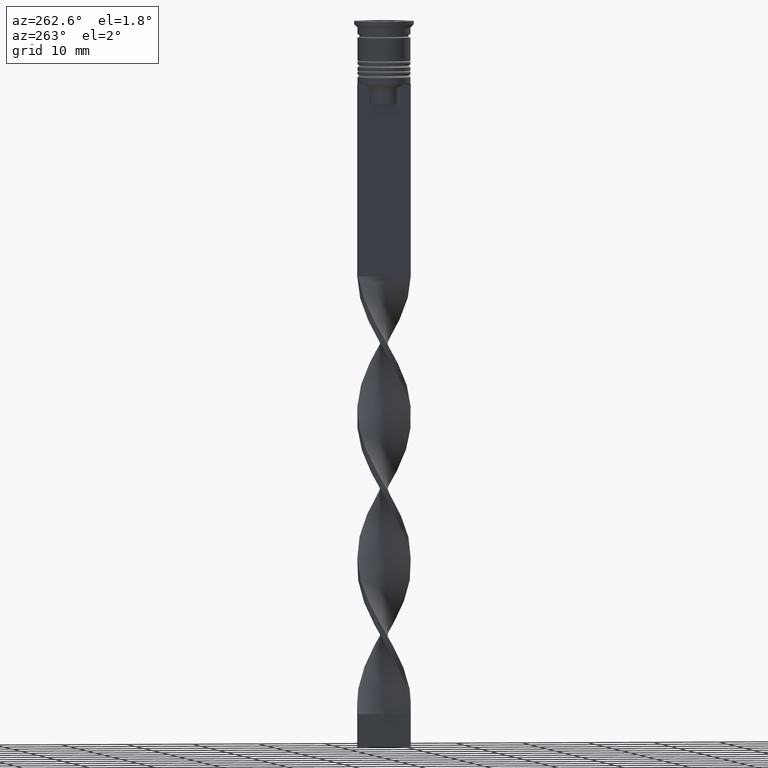
[diagram: clean part render]
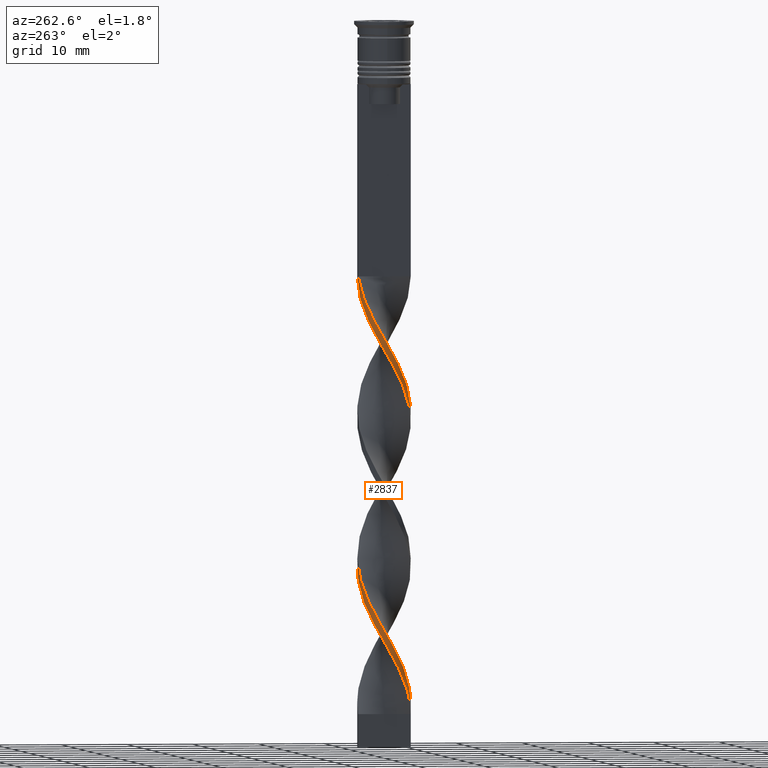
[diagram: same view with one face highlighted and labeled with its STEP entity id]
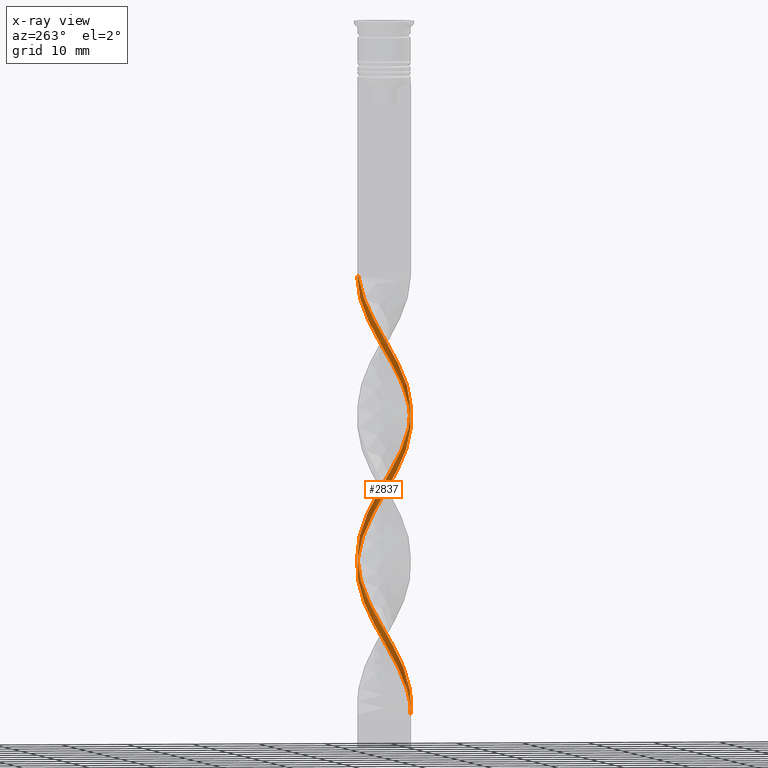
[diagram: x-ray of the same camera — body ghosted, the highlighted face saturated]
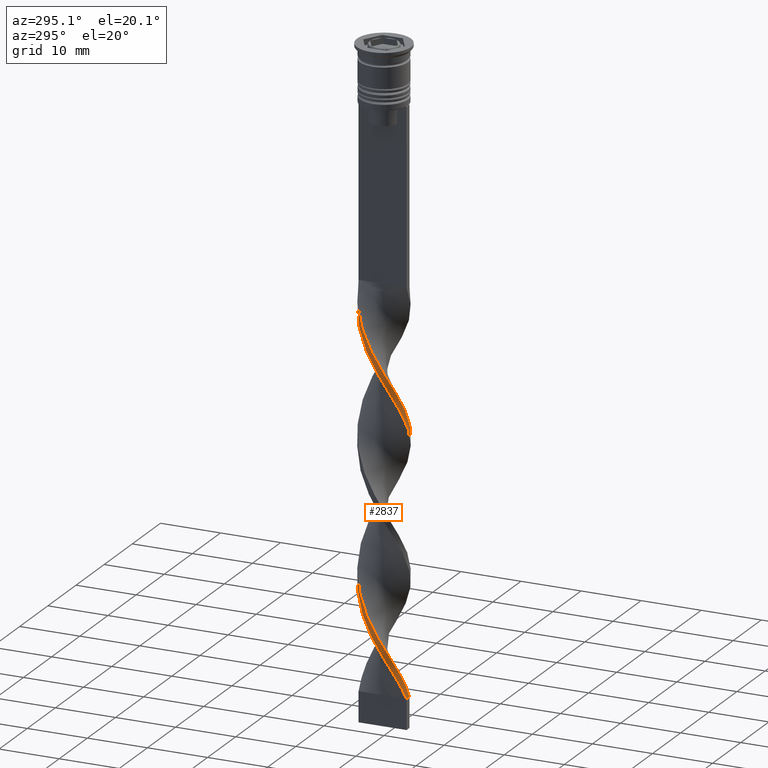
[diagram: same view with one face highlighted and labeled with its STEP entity id]
A machine part, auxiliary view. The second image highlights one B-rep face of the part: STEP entity #2837.
The next image is the same camera in x-ray: the body ghosted, the highlighted face saturated — about 0% of this face is hidden behind the body in this view.
A second angle (auxiliary view) of the same face is appended — the face is thin or edge-on in the first view.
In plain terms, the highlighted face is a freeform B-spline surface patch.
Its self-contained STEP definition (entity closure, byte-faithful):
#10 = CARTESIAN_POINT ( 'NONE',  ( -3.575967836940204148, -1.860767053977794516, -53.73076923076923350 ) ) ;
#20 = CARTESIAN_POINT ( 'NONE',  ( 0.4999999999999994449, -4.000000000000000000, -104.5000000000000142 ) ) ;
#26 = CARTESIAN_POINT ( 'NONE',  ( -3.007903090209047559, 2.683750919871451757, -89.26923076923077360 ) ) ;
#42 = CARTESIAN_POINT ( 'NONE',  ( -4.031103836519878136, 0.01420771602773549663, -94.34615384615385381 ) ) ;
#56 =( BOUNDED_SURFACE ( )  B_SPLINE_SURFACE ( 1, 2, ( 
 ( #1052, #1548, #1273, #2129, #3478, #3212, #109, #976, #3234, #3251, #702, #2983, #730, #1844, #2956, #1863, #2970, #2919, #763, #1334, #446, #2172, #1256, #410, #3271, #2645, #2367, #280, #2533, #3589, #3631, #2189, #1920, #3363, #3649, #1939, #2792, #2211, #827, #2479, #545, #809, #1896, #1097, #3077, #2771, #3312, #267, #3005, #787, #1391, #246, #565, #2806, #2229, #486, #2736, #1425, #3047, #3026, #526, #1957, #1619, #1658, #2504, #3346, #506, #2246, #3614, #1639, #213, #2264, #1352, #2461, #846, #1117, #3568, #1682, #1370 ),
 ( #1150, #3063, #3331, #1133, #1412, #1071, #2520, #2753, #3290, #1978, #1701, #229, #860, #876, #3130, #2054, #2570, #630, #10, #3393, #328, #613, #2839, #1218, #1177, #935, #2005, #3149, #3163, #1440, #2275, #1167, #1770, #65, #1470, #3436, #893, #1788, #2023, #308, #2603, #2326, #2305, #3376, #1993, #2343, #3109, #1453, #1715, #292, #1732, #2875, #369, #3096, #86, #577, #346, #648, #1508, #591, #26, #1197, #2895, #2819, #2287, #1752, #42, #2623, #1236, #3415, #2859, #2553, #1491, #2583, #916, #2040, #667, #3527, #721 ) ),
 .UNSPECIFIED., .F., .F., .F. ) 
 B_SPLINE_SURFACE_WITH_KNOTS ( ( 2, 2 ),
 ( 3, 2, 2, 2, 2, 2, 2, 2, 2, 2, 2, 2, 2, 2, 2, 2, 2, 2, 2, 2, 2, 2, 2, 2, 2, 2, 2, 2, 2, 2, 2, 2, 2, 2, 2, 2, 2, 2, 2, 3 ),
 ( 0.000000000000000000, 1.000000000000000000 ),
 ( 0.000000000000000000, 0.01923076923076923184, 0.03846153846153846367, 0.05769230769230769551, 0.07692307692307692735, 0.09615384615384615918, 0.1153846153846153910, 0.1346153846153846090, 0.1538461538461538547, 0.1730769230769230727, 0.1923076923076923184, 0.2115384615384615363, 0.2307692307692307820, 0.2500000000000000000, 0.2692307692307692180, 0.2884615384615384359, 0.3076923076923077094, 0.3269230769230769273, 0.3461538461538461453, 0.3653846153846153633, 0.3846153846153846367, 0.4038461538461538547, 0.4230769230769230727, 0.4423076923076922906, 0.4615384615384615641, 0.4807692307692307820, 0.5000000000000000000, 0.5192307692307692735, 0.5384615384615384359, 0.5576923076923077094, 0.5769230769230768718, 0.5961538461538461453, 0.6153846153846154188, 0.6346153846153845812, 0.6538461538461538547, 0.6730769230769231282, 0.6923076923076922906, 0.7115384615384615641, 0.7307692307692307265, 0.7500000000000000000 ),
 .UNSPECIFIED. ) 
 GEOMETRIC_REPRESENTATION_ITEM ( )  RATIONAL_B_SPLINE_SURFACE ( (
 ( 1.000000000000000000, 0.9927088740980539727, 1.000000000000000000, 0.9927088740980539727, 1.000000000000000000, 0.9927088740980539727, 1.000000000000000000, 0.9927088740980539727, 1.000000000000000000, 0.9927088740980539727, 1.000000000000000000, 0.9927088740980539727, 1.000000000000000000, 0.9927088740980539727, 1.000000000000000000, 0.9927088740980539727, 1.000000000000000000, 0.9927088740980539727, 1.000000000000000000, 0.9927088740980539727, 1.000000000000000000, 0.9927088740980539727, 1.000000000000000000, 0.9927088740980539727, 1.000000000000000000, 0.9927088740980539727, 1.000000000000000000, 0.9927088740980539727, 1.000000000000000000, 0.9927088740980539727, 1.000000000000000000, 0.9927088740980539727, 1.000000000000000000, 0.9927088740980539727, 1.000000000000000000, 0.9927088740980539727, 1.000000000000000000, 0.9927088740980539727, 1.000000000000000000, 0.9927088740980539727, 1.000000000000000000, 0.9927088740980539727, 1.000000000000000000, 0.9927088740980539727, 1.000000000000000000, 0.9927088740980539727, 1.000000000000000000, 0.9927088740980539727, 1.000000000000000000, 0.9927088740980539727, 1.000000000000000000, 0.9927088740980539727, 1.000000000000000000, 0.9927088740980539727, 1.000000000000000000, 0.9927088740980539727, 1.000000000000000000, 0.9927088740980539727, 1.000000000000000000, 0.9927088740980539727, 1.000000000000000000, 0.9927088740980539727, 1.000000000000000000, 0.9927088740980539727, 1.000000000000000000, 0.9927088740980539727, 1.000000000000000000, 0.9927088740980539727, 1.000000000000000000, 0.9927088740980539727, 1.000000000000000000, 0.9927088740980539727, 1.000000000000000000, 0.9927088740980539727, 1.000000000000000000, 0.9927088740980539727, 1.000000000000000000, 0.9927088740980539727, 1.000000000000000000),
 ( 1.000000000000000000, 0.9927088740980539727, 1.000000000000000000, 0.9927088740980539727, 1.000000000000000000, 0.9927088740980539727, 1.000000000000000000, 0.9927088740980539727, 1.000000000000000000, 0.9927088740980539727, 1.000000000000000000, 0.9927088740980539727, 1.000000000000000000, 0.9927088740980539727, 1.000000000000000000, 0.9927088740980539727, 1.000000000000000000, 0.9927088740980539727, 1.000000000000000000, 0.9927088740980539727, 1.000000000000000000, 0.9927088740980539727, 1.000000000000000000, 0.9927088740980539727, 1.000000000000000000, 0.9927088740980539727, 1.000000000000000000, 0.9927088740980539727, 1.000000000000000000, 0.9927088740980539727, 1.000000000000000000, 0.9927088740980539727, 1.000000000000000000, 0.9927088740980539727, 1.000000000000000000, 0.9927088740980539727, 1.000000000000000000, 0.9927088740980539727, 1.000000000000000000, 0.9927088740980539727, 1.000000000000000000, 0.9927088740980539727, 1.000000000000000000, 0.9927088740980539727, 1.000000000000000000, 0.9927088740980539727, 1.000000000000000000, 0.9927088740980539727, 1.000000000000000000, 0.9927088740980539727, 1.000000000000000000, 0.9927088740980539727, 1.000000000000000000, 0.9927088740980539727, 1.000000000000000000, 0.9927088740980539727, 1.000000000000000000, 0.9927088740980539727, 1.000000000000000000, 0.9927088740980539727, 1.000000000000000000, 0.9927088740980539727, 1.000000000000000000, 0.9927088740980539727, 1.000000000000000000, 0.9927088740980539727, 1.000000000000000000, 0.9927088740980539727, 1.000000000000000000, 0.9927088740980539727, 1.000000000000000000, 0.9927088740980539727, 1.000000000000000000, 0.9927088740980539727, 1.000000000000000000, 0.9927088740980539727, 1.000000000000000000, 0.9927088740980539727, 1.000000000000000000) ) ) 
 REPRESENTATION_ITEM ( '' )  SURFACE ( )  );
#57 = CARTESIAN_POINT ( 'NONE',  ( 3.917367414262926673, -0.9509114268274362347, -68.96153846153846700 ) ) ;
#65 = CARTESIAN_POINT ( 'NONE',  ( 2.682036731043688782, -3.048976478425001524, -66.42307692307694822 ) ) ;
#78 = CARTESIAN_POINT ( 'NONE',  ( 3.026746007048730647, -2.662481663564007839, -65.57692307692308020 ) ) ;
#86 = CARTESIAN_POINT ( 'NONE',  ( -0.4717917484372050052, 4.003425101847986944, -84.19230769230769340 ) ) ;
#95 = CARTESIAN_POINT ( 'NONE',  ( -0.9578955639853689030, -3.946139212084843972, -57.96153846153846700 ) ) ;
#109 = CARTESIAN_POINT ( 'NONE',  ( -3.026746007048731091, 2.662481663564006951, -43.57692307692307310 ) ) ;
#154 = CARTESIAN_POINT ( 'NONE',  ( -4.032828965577023972, 0.4752569063773721680, -91.80769230769230660 ) ) ;
#160 = CARTESIAN_POINT ( 'NONE',  ( -0.9856879328890441050, -3.939289008388869640, -59.65384615384615330 ) ) ;
#172 = LINE ( 'NONE', #3559, #614 ) ;
#180 = CARTESIAN_POINT ( 'NONE',  ( -3.575967836940204148, -1.860767053977794516, -53.73076923076923350 ) ) ;
#207 = CARTESIAN_POINT ( 'NONE',  ( 4.031103836519877248, -0.01420771602773772055, -72.34615384615383959 ) ) ;
#213 = CARTESIAN_POINT ( 'NONE',  ( -3.007903090209048003, -2.683750919871450868, -97.73076923076922640 ) ) ;
#224 = CARTESIAN_POINT ( 'NONE',  ( 3.333769449374404115, -2.318525361317905098, -68.11538461538461320 ) ) ;
#229 = CARTESIAN_POINT ( 'NONE',  ( -3.791755605066377655, 1.453329977707797260, -47.80769230769230660 ) ) ;
#246 = CARTESIAN_POINT ( 'NONE',  ( -0.01431206711095556715, 4.060710991611130360, -81.65384615384616041 ) ) ;
#267 = CARTESIAN_POINT ( 'NONE',  ( 1.874433786711571459, 3.602232165184603652, -78.26923076923075939 ) ) ;
#277 = CARTESIAN_POINT ( 'NONE',  ( 3.575967836940204148, 1.860767053977794072, -75.73076923076924061 ) ) ;
#280 = CARTESIAN_POINT ( 'NONE',  ( 0.9856879328890411074, -3.939289008388870084, -61.34615384615383959 ) ) ;
#292 = CARTESIAN_POINT ( 'NONE',  ( 1.899779198837473482, 3.588929866731988216, -79.96153846153846700 ) ) ;
#308 = CARTESIAN_POINT ( 'NONE',  ( 4.029378707462731413, -0.5036723384328422037, -71.50000000000000000 ) ) ;
#321 = CARTESIAN_POINT ( 'NONE',  ( -1.899779198837471705, 3.588929866731989549, -41.03846153846154010 ) ) ;
#328 = CARTESIAN_POINT ( 'NONE',  ( -3.026746007048731979, -2.662481663564005618, -55.42307692307691980 ) ) ;
#335 = ORIENTED_EDGE ( 'NONE', *, *, #2945, .T. ) ;
#339 = CARTESIAN_POINT ( 'NONE',  ( 3.350029810931575813, -2.294968160678093394, -66.42307692307693401 ) ) ;
#346 = CARTESIAN_POINT ( 'NONE',  ( -1.416164675348469126, 3.774185688634723590, -85.88461538461538680 ) ) ;
#361 = CARTESIAN_POINT ( 'NONE',  ( 2.682036731043692779, 3.048976478424997527, -76.57692307692306599 ) ) ;
#369 = CARTESIAN_POINT ( 'NONE',  ( 0.5000000000000000000, 4.000000000000000000, -82.50000000000000000 ) ) ;
#382 = CARTESIAN_POINT ( 'NONE',  ( -3.910567156264554534, -0.9785011580703186773, -50.34615384615384670 ) ) ;
#384 = VERTEX_POINT ( 'NONE', #2677 ) ;
#399 = CARTESIAN_POINT ( 'NONE',  ( -4.032828965577023972, 0.4752569063773721680, -47.80769230769230660 ) ) ;
#410 = CARTESIAN_POINT ( 'NONE',  ( -0.9578955639853687920, -3.946139212084844416, -57.96153846153846700 ) ) ;
#418 = CARTESIAN_POINT ( 'NONE',  ( 0.4999999999999994449, -4.000000000000000000, -104.5000000000000142 ) ) ;
#427 = CARTESIAN_POINT ( 'NONE',  ( -4.031103836519878136, 0.01420771602773549663, -50.34615384615384670 ) ) ;
#435 = CARTESIAN_POINT ( 'NONE',  ( -4.031103836519878136, -0.01420771602773408804, -92.65384615384616041 ) ) ;
#441 = CARTESIAN_POINT ( 'NONE',  ( -0.9578955639853675708, 3.946139212084843972, -41.03846153846154010 ) ) ;
#446 = CARTESIAN_POINT ( 'NONE',  ( -2.278235258877631342, -3.325604321804801256, -55.42307692307691980 ) ) ;
#482 = CARTESIAN_POINT ( 'NONE',  ( 1.899779198837473482, 3.588929866731988660, -79.96153846153846700 ) ) ;
#486 = CARTESIAN_POINT ( 'NONE',  ( -1.899779198837471705, 3.588929866731989105, -85.03846153846153300 ) ) ;
#493 = EDGE_CURVE ( 'NONE', #384, #1824, #1607, .T. ) ;
#501 = CARTESIAN_POINT ( 'NONE',  ( -0.9578955639853675708, 3.946139212084843972, -85.03846153846153300 ) ) ;
#506 = CARTESIAN_POINT ( 'NONE',  ( -3.910567156264554534, -0.9785011580703186773, -94.34615384615385381 ) ) ;
#520 = CARTESIAN_POINT ( 'NONE',  ( 0.4717917484372037285, -4.003425101847986944, -62.19230769230769340 ) ) ;
#526 = CARTESIAN_POINT ( 'NONE',  ( -3.575967836940203703, 1.860767053977795404, -89.26923076923077360 ) ) ;
#534 = DIRECTION ( 'NONE',  ( -1.000000000000000000, 0.000000000000000000, 0.000000000000000000 ) ) ;
#541 = CARTESIAN_POINT ( 'NONE',  ( -1.416164675348469126, 3.774185688634723590, -85.88461538461538680 ) ) ;
#545 = CARTESIAN_POINT ( 'NONE',  ( 3.910567156264555422, 0.9785011580703162348, -72.34615384615383959 ) ) ;
#560 = CARTESIAN_POINT ( 'NONE',  ( 2.278235258877629565, -3.325604321804802588, -65.57692307692308020 ) ) ;
#565 = CARTESIAN_POINT ( 'NONE',  ( -0.5000000000000000000, 4.000000000000000000, -82.50000000000000000 ) ) ;
#577 = CARTESIAN_POINT ( 'NONE',  ( -0.9578955639853675708, 3.946139212084844416, -85.03846153846153300 ) ) ;
#591 = CARTESIAN_POINT ( 'NONE',  ( -2.682036731043689670, 3.048976478425000636, -88.42307692307693401 ) ) ;
#606 = CARTESIAN_POINT ( 'NONE',  ( -3.026746007048731091, 2.662481663564006951, -43.57692307692307310 ) ) ;
#608 =( BOUNDED_CURVE ( )  B_SPLINE_CURVE ( 2, ( #974, #2361, #744, #441, #2397, #953, #3490, #2108, #3471, #2093, #2710, #2932, #1840, #2125, #427, #1306, #1560, #3199, #180, #3508, #2678, #1008, #1330, #1575, #2695, #160, #2071, #2412, #520, #1069, #2732, #3267, #560, #2518, #2434, #224, #1972, #1365, #1115, #758, #207, #3583, #1387, #3547, #277, #1408, #1635, #3628, #1891, #482, #2766, #3076, #781, #840, #1697, #501, #541, #1348, #2458, #1048, #2802, #2168, #1934, #2748, #3329, #1617, #3000, #2473, #3306, #3564, #2183, #2226, #1675, #3042, #1130, #1090, #3342, #2207, #1918 ),
 .UNSPECIFIED., .F., .T. ) 
 B_SPLINE_CURVE_WITH_KNOTS ( ( 3, 2, 2, 2, 2, 2, 2, 2, 2, 2, 2, 2, 2, 2, 2, 2, 2, 2, 2, 2, 2, 2, 2, 2, 2, 2, 2, 2, 2, 2, 2, 2, 2, 2, 2, 2, 2, 2, 2, 3 ),
 ( 0.000000000000000000, 0.01923076923076923184, 0.03846153846153846367, 0.05769230769230768857, 0.07692307692307692735, 0.09615384615384615918, 0.1153846153846153771, 0.1346153846153846090, 0.1538461538461538547, 0.1730769230769230449, 0.1923076923076923184, 0.2115384615384615363, 0.2307692307692307543, 0.2500000000000000000, 0.2692307692307692180, 0.2884615384615384359, 0.3076923076923077094, 0.3269230769230769273, 0.3461538461538460898, 0.3653846153846153633, 0.3846153846153846367, 0.4038461538461539102, 0.4230769230769230727, 0.4423076923076922906, 0.4615384615384615086, 0.4807692307692307820, 0.5000000000000000000, 0.5192307692307692735, 0.5384615384615384359, 0.5576923076923077094, 0.5769230769230768718, 0.5961538461538461453, 0.6153846153846154188, 0.6346153846153845812, 0.6538461538461538547, 0.6730769230769230171, 0.6923076923076921796, 0.7115384615384615641, 0.7307692307692307265, 0.7500000000000000000 ),
 .UNSPECIFIED. ) 
 CURVE ( )  GEOMETRIC_REPRESENTATION_ITEM ( )  RATIONAL_B_SPLINE_CURVE ( ( 1.000000000000000000, 0.9927088740980539727, 1.000000000000000000, 0.9927088740980539727, 1.000000000000000000, 0.9927088740980539727, 1.000000000000000000, 0.9927088740980539727, 1.000000000000000000, 0.9927088740980539727, 1.000000000000000000, 0.9927088740980539727, 1.000000000000000000, 0.9927088740980539727, 1.000000000000000000, 0.9927088740980539727, 1.000000000000000000, 0.9927088740980539727, 1.000000000000000000, 0.9927088740980539727, 1.000000000000000000, 0.9927088740980539727, 1.000000000000000000, 0.9927088740980539727, 1.000000000000000000, 0.9927088740980539727, 1.000000000000000000, 0.9927088740980539727, 1.000000000000000000, 0.9927088740980539727, 1.000000000000000000, 0.9927088740980539727, 1.000000000000000000, 0.9927088740980539727, 1.000000000000000000, 0.9927088740980539727, 1.000000000000000000, 0.9927088740980539727, 1.000000000000000000, 0.9927088740980539727, 1.000000000000000000, 0.9927088740980539727, 1.000000000000000000, 0.9927088740980539727, 1.000000000000000000, 0.9927088740980539727, 1.000000000000000000, 0.9927088740980539727, 1.000000000000000000, 0.9927088740980539727, 1.000000000000000000, 0.9927088740980539727, 1.000000000000000000, 0.9927088740980539727, 1.000000000000000000, 0.9927088740980539727, 1.000000000000000000, 0.9927088740980539727, 1.000000000000000000, 0.9927088740980539727, 1.000000000000000000, 0.9927088740980539727, 1.000000000000000000, 0.9927088740980539727, 1.000000000000000000, 0.9927088740980539727, 1.000000000000000000, 0.9927088740980539727, 1.000000000000000000, 0.9927088740980539727, 1.000000000000000000, 0.9927088740980539727, 1.000000000000000000, 0.9927088740980539727, 1.000000000000000000, 0.9927088740980539727, 1.000000000000000000, 0.9927088740980539727, 1.000000000000000000 ) ) 
 REPRESENTATION_ITEM ( '' )  );
#613 = CARTESIAN_POINT ( 'NONE',  ( -2.703462203165886368, -3.029995166449921840, -56.26923076923076650 ) ) ;
#614 = VECTOR ( 'NONE', #534, 1000.000000000000000 ) ;
#624 = CARTESIAN_POINT ( 'NONE',  ( -1.874433786711570793, -3.602232165184603652, -56.26923076923076650 ) ) ;
#630 = CARTESIAN_POINT ( 'NONE',  ( -3.801905862948830261, -1.426565947277498081, -52.88461538461537970 ) ) ;
#641 = CARTESIAN_POINT ( 'NONE',  ( 1.442733565863255851, -3.764109437560429594, -62.19230769230769340 ) ) ;
#643 = ORIENTED_EDGE ( 'NONE', *, *, #3161, .F. ) ;
#648 = CARTESIAN_POINT ( 'NONE',  ( -1.874433786711570571, 3.602232165184604096, -86.73076923076922640 ) ) ;
#667 = CARTESIAN_POINT ( 'NONE',  ( -1.442733565863258516, -3.764109437560428262, -102.8076923076923208 ) ) ;
#679 = CARTESIAN_POINT ( 'NONE',  ( -3.801905862948830706, 1.426565947277498525, -46.11538461538462030 ) ) ;
#702 = CARTESIAN_POINT ( 'NONE',  ( -3.917367414262926673, 0.9509114268274357906, -46.96153846153845990 ) ) ;
#721 = CARTESIAN_POINT ( 'NONE',  ( -0.5000000000000005551, -4.000000000000000000, -104.5000000000000142 ) ) ;
#730 = CARTESIAN_POINT ( 'NONE',  ( -4.031103836519878136, -0.01420771602773408804, -48.65384615384615330 ) ) ;
#735 = CARTESIAN_POINT ( 'NONE',  ( -1.874433786711570793, -3.602232165184603652, -100.2692307692307878 ) ) ;
#744 = CARTESIAN_POINT ( 'NONE',  ( -0.4717917484372050052, 4.003425101847986944, -40.19230769230769340 ) ) ;
#758 = CARTESIAN_POINT ( 'NONE',  ( 4.029378707462731413, -0.5036723384328422037, -71.50000000000001421 ) ) ;
#763 = CARTESIAN_POINT ( 'NONE',  ( -3.007903090209048003, -2.683750919871450868, -53.73076923076923350 ) ) ;
#768 = CARTESIAN_POINT ( 'NONE',  ( 0.5000000000000000000, 4.000000000000000000, -38.50000000000000000 ) ) ;
#773 = CARTESIAN_POINT ( 'NONE',  ( -0.9578955639853689030, -3.946139212084843972, -101.9615384615384670 ) ) ;
#781 = CARTESIAN_POINT ( 'NONE',  ( 0.5000000000000000000, 4.000000000000000000, -82.50000000000000000 ) ) ;
#787 = CARTESIAN_POINT ( 'NONE',  ( 0.9578955639853692361, 3.946139212084844416, -79.96153846153846700 ) ) ;
#809 = CARTESIAN_POINT ( 'NONE',  ( 3.791755605066378987, 1.453329977707795484, -73.19230769230770761 ) ) ;
#827 = CARTESIAN_POINT ( 'NONE',  ( 4.031103836519878136, 0.01420771602773273322, -70.65384615384614619 ) ) ;
#840 = CARTESIAN_POINT ( 'NONE',  ( 0.01431206711095789862, 4.060710991611130360, -83.34615384615386802 ) ) ;
#846 = CARTESIAN_POINT ( 'NONE',  ( -1.416164675348469792, -3.774185688634723146, -101.1153846153846132 ) ) ;
#856 = CARTESIAN_POINT ( 'NONE',  ( -0.5000000000000005551, -4.000000000000000000, -104.5000000000000142 ) ) ;
#860 = CARTESIAN_POINT ( 'NONE',  ( -3.910567156264554534, 0.9785011580703200096, -48.65384615384615330 ) ) ;
#876 = CARTESIAN_POINT ( 'NONE',  ( -4.029378707462731413, 0.5036723384328416486, -49.50000000000000000 ) ) ;
#879 = CARTESIAN_POINT ( 'NONE',  ( -0.5000000000000005551, -4.000000000000000000, -104.5000000000000142 ) ) ;
#887 = CARTESIAN_POINT ( 'NONE',  ( -4.031103836519878136, -0.01420771602773408804, -48.65384615384615330 ) ) ;
#893 = CARTESIAN_POINT ( 'NONE',  ( 3.562762527220391107, -1.885927669512850846, -68.96153846153846700 ) ) ;
#911 = CARTESIAN_POINT ( 'NONE',  ( 0.4999999999999994449, -4.000000000000000000, -60.50000000000000000 ) ) ;
#916 = CARTESIAN_POINT ( 'NONE',  ( -2.301620701001679148, -3.309462516590954806, -101.1153846153846132 ) ) ;
#929 = CARTESIAN_POINT ( 'NONE',  ( 1.899779198837470373, -3.588929866731989993, -63.03846153846154010 ) ) ;
#935 = CARTESIAN_POINT ( 'NONE',  ( -0.9856879328890439940, -3.939289008388870084, -59.65384615384615330 ) ) ;
#946 = CARTESIAN_POINT ( 'NONE',  ( -3.575967836940203703, 1.860767053977795404, -45.26923076923076650 ) ) ;
#953 = CARTESIAN_POINT ( 'NONE',  ( -1.874433786711570349, 3.602232165184604096, -42.73076923076923350 ) ) ;
#967 = CARTESIAN_POINT ( 'NONE',  ( -2.682036731043691002, -3.048976478424999303, -54.57692307692308731 ) ) ;
#974 = CARTESIAN_POINT ( 'NONE',  ( 0.5000000000000000000, 4.000000000000000000, -38.50000000000000000 ) ) ;
#976 = CARTESIAN_POINT ( 'NONE',  ( -3.350029810931576701, 2.294968160678092506, -44.42307692307691980 ) ) ;
#984 = CARTESIAN_POINT ( 'NONE',  ( -1.416164675348469792, -3.774185688634723146, -101.1153846153846132 ) ) ;
#1006 = VERTEX_POINT ( 'NONE', #879 ) ;
#1008 = CARTESIAN_POINT ( 'NONE',  ( -2.703462203165886368, -3.029995166449921840, -56.26923076923076650 ) ) ;
#1048 = CARTESIAN_POINT ( 'NONE',  ( -2.682036731043690114, 3.048976478425000636, -88.42307692307691980 ) ) ;
#1052 = CARTESIAN_POINT ( 'NONE',  ( -0.5000000000000000000, 4.000000000000000000, -38.50000000000000000 ) ) ;
#1069 = CARTESIAN_POINT ( 'NONE',  ( 0.9578955639853662385, -3.946139212084843972, -63.03846153846154010 ) ) ;
#1071 = CARTESIAN_POINT ( 'NONE',  ( -1.874433786711570571, 3.602232165184604096, -42.73076923076923350 ) ) ;
#1090 = CARTESIAN_POINT ( 'NONE',  ( -1.899779198837473038, -3.588929866731988660, -101.9615384615384670 ) ) ;
#1097 = CARTESIAN_POINT ( 'NONE',  ( 3.333769449374406335, 2.318525361317901101, -74.88461538461538680 ) ) ;
#1115 = CARTESIAN_POINT ( 'NONE',  ( 3.910567156264554534, -0.9785011580703212308, -70.65384615384614619 ) ) ;
#1117 = CARTESIAN_POINT ( 'NONE',  ( -0.9578955639853687920, -3.946139212084844416, -101.9615384615384670 ) ) ;
#1130 = CARTESIAN_POINT ( 'NONE',  ( -2.301620701001679148, -3.309462516590954806, -101.1153846153846132 ) ) ;
#1133 = CARTESIAN_POINT ( 'NONE',  ( -0.9578955639853675708, 3.946139212084844416, -41.03846153846154010 ) ) ;
#1145 = CARTESIAN_POINT ( 'NONE',  ( -0.1666666666666672403, -4.000000000000000000, -104.5000000000000142 ) ) ;
#1150 = CARTESIAN_POINT ( 'NONE',  ( 0.5000000000000000000, 4.000000000000000000, -38.50000000000000000 ) ) ;
#1167 = CARTESIAN_POINT ( 'NONE',  ( 1.874433786711570127, -3.602232165184604540, -64.73076923076921219 ) ) ;
#1173 = CARTESIAN_POINT ( 'NONE',  ( -0.9856879328890421066, 3.939289008388869640, -39.34615384615384670 ) ) ;
#1175 = ORIENTED_EDGE ( 'NONE', *, *, #493, .F. ) ;
#1177 = CARTESIAN_POINT ( 'NONE',  ( -1.442733565863258516, -3.764109437560428262, -58.80769230769231370 ) ) ;
#1189 = CARTESIAN_POINT ( 'NONE',  ( -0.5000000000000000000, 4.000000000000000000, -38.50000000000000000 ) ) ;
#1197 = CARTESIAN_POINT ( 'NONE',  ( -3.333769449374405003, 2.318525361317902878, -90.11538461538462741 ) ) ;
#1209 = CARTESIAN_POINT ( 'NONE',  ( 4.031103836519878136, 0.01420771602773273322, -70.65384615384614619 ) ) ;
#1218 = CARTESIAN_POINT ( 'NONE',  ( -1.899779198837473038, -3.588929866731988216, -57.96153846153846700 ) ) ;
#1229 = CARTESIAN_POINT ( 'NONE',  ( 2.278235258877631786, 3.325604321804800811, -77.42307692307693401 ) ) ;
#1231 = B_SPLINE_CURVE_WITH_KNOTS ( 'NONE', 3,
 ( #3158, #2890, #1145, #856 ),
 .UNSPECIFIED., .F., .F.,
 ( 4, 4 ),
 ( 0.000000000000000000, 1.000000000000000000 ),
 .UNSPECIFIED. ) ;
#1236 = CARTESIAN_POINT ( 'NONE',  ( -3.917367414262927561, -0.9509114268274344584, -96.03846153846154721 ) ) ;
#1245 = CARTESIAN_POINT ( 'NONE',  ( 4.032828965577023084, -0.4752569063773718350, -69.80769230769230660 ) ) ;
#1256 = CARTESIAN_POINT ( 'NONE',  ( -1.416164675348469792, -3.774185688634723146, -57.11538461538461320 ) ) ;
#1273 = CARTESIAN_POINT ( 'NONE',  ( -1.442733565863256961, 3.764109437560429150, -40.19230769230769340 ) ) ;
#1283 = CARTESIAN_POINT ( 'NONE',  ( -3.910567156264554534, -0.9785011580703186773, -94.34615384615385381 ) ) ;
#1298 = CARTESIAN_POINT ( 'NONE',  ( -3.333769449374405447, -2.318525361317902878, -96.88461538461538680 ) ) ;
#1306 = CARTESIAN_POINT ( 'NONE',  ( -4.032828965577023084, -0.4752569063773717239, -51.19230769230768630 ) ) ;
#1321 = CARTESIAN_POINT ( 'NONE',  ( -3.917367414262926673, 0.9509114268274357906, -90.96153846153845279 ) ) ;
#1330 = CARTESIAN_POINT ( 'NONE',  ( -2.301620701001679148, -3.309462516590954806, -57.11538461538461320 ) ) ;
#1334 = CARTESIAN_POINT ( 'NONE',  ( -2.682036731043690558, -3.048976478424999303, -54.57692307692308731 ) ) ;
#1348 = CARTESIAN_POINT ( 'NONE',  ( -1.874433786711570349, 3.602232165184604096, -86.73076923076922640 ) ) ;
#1352 = CARTESIAN_POINT ( 'NONE',  ( -2.278235258877631342, -3.325604321804801256, -99.42307692307691980 ) ) ;
#1365 = CARTESIAN_POINT ( 'NONE',  ( 3.791755605066377655, -1.453329977707796816, -69.80769230769230660 ) ) ;
#1370 = CARTESIAN_POINT ( 'NONE',  ( 0.4999999999999994449, -4.000000000000000000, -104.5000000000000142 ) ) ;
#1387 = CARTESIAN_POINT ( 'NONE',  ( 3.917367414262927561, 0.9509114268274349024, -74.03846153846153300 ) ) ;
#1391 = CARTESIAN_POINT ( 'NONE',  ( 0.4717917484372087800, 4.003425101847986056, -80.80769230769230660 ) ) ;
#1408 = CARTESIAN_POINT ( 'NONE',  ( 3.350029810931578478, 2.294968160678088509, -76.57692307692306599 ) ) ;
#1412 = CARTESIAN_POINT ( 'NONE',  ( -1.416164675348469126, 3.774185688634723590, -41.88461538461537970 ) ) ;
#1425 = CARTESIAN_POINT ( 'NONE',  ( -2.703462203165886368, 3.029995166449922284, -86.73076923076922640 ) ) ;
#1440 = CARTESIAN_POINT ( 'NONE',  ( 0.9578955639853662385, -3.946139212084844416, -63.03846153846153300 ) ) ;
#1453 = CARTESIAN_POINT ( 'NONE',  ( 2.703462203165886812, 3.029995166449921840, -78.26923076923075939 ) ) ;
#1464 = CARTESIAN_POINT ( 'NONE',  ( -0.4717917484372064485, -4.003425101847986056, -58.80769230769231370 ) ) ;
#1470 = CARTESIAN_POINT ( 'NONE',  ( 3.007903090209047559, -2.683750919871451757, -67.26923076923077360 ) ) ;
#1483 = CARTESIAN_POINT ( 'NONE',  ( 3.801905862948829373, -1.426565947277500745, -68.11538461538461320 ) ) ;
#1491 = CARTESIAN_POINT ( 'NONE',  ( -3.026746007048731979, -2.662481663564005618, -99.42307692307691980 ) ) ;
#1508 = CARTESIAN_POINT ( 'NONE',  ( -2.278235258877630010, 3.325604321804802588, -87.57692307692308020 ) ) ;
#1520 = CARTESIAN_POINT ( 'NONE',  ( 3.791755605066378987, 1.453329977707795484, -73.19230769230769340 ) ) ;
#1535 = CARTESIAN_POINT ( 'NONE',  ( -0.9856879328890421066, 3.939289008388869640, -83.34615384615386802 ) ) ;
#1548 = CARTESIAN_POINT ( 'NONE',  ( -0.9856879328890421066, 3.939289008388870084, -39.34615384615384670 ) ) ;
#1560 = CARTESIAN_POINT ( 'NONE',  ( -3.917367414262927561, -0.9509114268274344584, -52.03846153846154010 ) ) ;
#1575 = CARTESIAN_POINT ( 'NONE',  ( -1.899779198837473038, -3.588929866731988660, -57.96153846153846700 ) ) ;
#1584 = CARTESIAN_POINT ( 'NONE',  ( -0.4717917484372064485, -4.003425101847986056, -102.8076923076923208 ) ) ;
#1607 =( BOUNDED_CURVE ( )  B_SPLINE_CURVE ( 2, ( #1189, #1173, #2653, #321, #3142, #2017, #606, #2035, #946, #679, #2284, #399, #887, #3175, #382, #1820, #2299, #3406, #2616, #967, #3125, #624, #1745, #95, #1464, #2596, #911, #2909, #641, #929, #1765, #2870, #78, #339, #2065, #1483, #57, #1245, #1209, #3429, #2047, #1520, #1804, #1781, #2888, #361, #1229, #2354, #2634, #2337, #3464, #2086, #2927, #1535, #1851, #3540, #2941, #2689, #3240, #2403, #2117, #2961, #1321, #154, #435, #2672, #1283, #2179, #3220, #1298, #2424, #3518, #1608, #735, #984, #773, #1584, #2103, #418 ),
 .UNSPECIFIED., .F., .T. ) 
 B_SPLINE_CURVE_WITH_KNOTS ( ( 3, 2, 2, 2, 2, 2, 2, 2, 2, 2, 2, 2, 2, 2, 2, 2, 2, 2, 2, 2, 2, 2, 2, 2, 2, 2, 2, 2, 2, 2, 2, 2, 2, 2, 2, 2, 2, 2, 2, 3 ),
 ( 0.000000000000000000, 0.01923076923076923184, 0.03846153846153846367, 0.05769230769230768857, 0.07692307692307692735, 0.09615384615384615918, 0.1153846153846153771, 0.1346153846153846090, 0.1538461538461538547, 0.1730769230769230449, 0.1923076923076923184, 0.2115384615384615363, 0.2307692307692307543, 0.2500000000000000000, 0.2692307692307692180, 0.2884615384615384359, 0.3076923076923077094, 0.3269230769230769273, 0.3461538461538460898, 0.3653846153846153633, 0.3846153846153846367, 0.4038461538461539102, 0.4230769230769230727, 0.4423076923076922906, 0.4615384615384615086, 0.4807692307692307820, 0.5000000000000000000, 0.5192307692307692735, 0.5384615384615384359, 0.5576923076923077094, 0.5769230769230768718, 0.5961538461538461453, 0.6153846153846154188, 0.6346153846153845812, 0.6538461538461538547, 0.6730769230769230171, 0.6923076923076921796, 0.7115384615384615641, 0.7307692307692307265, 0.7500000000000000000 ),
 .UNSPECIFIED. ) 
 CURVE ( )  GEOMETRIC_REPRESENTATION_ITEM ( )  RATIONAL_B_SPLINE_CURVE ( ( 1.000000000000000000, 0.9927088740980539727, 1.000000000000000000, 0.9927088740980539727, 1.000000000000000000, 0.9927088740980539727, 1.000000000000000000, 0.9927088740980539727, 1.000000000000000000, 0.9927088740980539727, 1.000000000000000000, 0.9927088740980539727, 1.000000000000000000, 0.9927088740980539727, 1.000000000000000000, 0.9927088740980539727, 1.000000000000000000, 0.9927088740980539727, 1.000000000000000000, 0.9927088740980539727, 1.000000000000000000, 0.9927088740980539727, 1.000000000000000000, 0.9927088740980539727, 1.000000000000000000, 0.9927088740980539727, 1.000000000000000000, 0.9927088740980539727, 1.000000000000000000, 0.9927088740980539727, 1.000000000000000000, 0.9927088740980539727, 1.000000000000000000, 0.9927088740980539727, 1.000000000000000000, 0.9927088740980539727, 1.000000000000000000, 0.9927088740980539727, 1.000000000000000000, 0.9927088740980539727, 1.000000000000000000, 0.9927088740980539727, 1.000000000000000000, 0.9927088740980539727, 1.000000000000000000, 0.9927088740980539727, 1.000000000000000000, 0.9927088740980539727, 1.000000000000000000, 0.9927088740980539727, 1.000000000000000000, 0.9927088740980539727, 1.000000000000000000, 0.9927088740980539727, 1.000000000000000000, 0.9927088740980539727, 1.000000000000000000, 0.9927088740980539727, 1.000000000000000000, 0.9927088740980539727, 1.000000000000000000, 0.9927088740980539727, 1.000000000000000000, 0.9927088740980539727, 1.000000000000000000, 0.9927088740980539727, 1.000000000000000000, 0.9927088740980539727, 1.000000000000000000, 0.9927088740980539727, 1.000000000000000000, 0.9927088740980539727, 1.000000000000000000, 0.9927088740980539727, 1.000000000000000000, 0.9927088740980539727, 1.000000000000000000, 0.9927088740980539727, 1.000000000000000000 ) ) 
 REPRESENTATION_ITEM ( '' )  );
#1608 = CARTESIAN_POINT ( 'NONE',  ( -2.278235258877631342, -3.325604321804801256, -99.42307692307691980 ) ) ;
#1617 = CARTESIAN_POINT ( 'NONE',  ( -4.029378707462731413, 0.5036723384328416486, -93.50000000000000000 ) ) ;
#1619 = CARTESIAN_POINT ( 'NONE',  ( -3.917367414262926673, 0.9509114268274357906, -90.96153846153845279 ) ) ;
#1635 = CARTESIAN_POINT ( 'NONE',  ( 3.026746007048732423, 2.662481663564005174, -77.42307692307693401 ) ) ;
#1639 = CARTESIAN_POINT ( 'NONE',  ( -3.333769449374405447, -2.318525361317902433, -96.88461538461538680 ) ) ;
#1658 = CARTESIAN_POINT ( 'NONE',  ( -4.032828965577023972, 0.4752569063773721680, -91.80769230769230660 ) ) ;
#1674 = ORIENTED_EDGE ( 'NONE', *, *, #3208, .F. ) ;
#1675 = CARTESIAN_POINT ( 'NONE',  ( -3.026746007048731979, -2.662481663564005618, -99.42307692307691980 ) ) ;
#1682 = CARTESIAN_POINT ( 'NONE',  ( 0.01431206711095605461, -4.060710991611130360, -103.6538461538461604 ) ) ;
#1697 = CARTESIAN_POINT ( 'NONE',  ( -0.4717917484372050052, 4.003425101847986944, -84.19230769230769340 ) ) ;
#1701 = CARTESIAN_POINT ( 'NONE',  ( -3.562762527220391107, 1.885927669512850402, -46.96153846153845990 ) ) ;
#1715 = CARTESIAN_POINT ( 'NONE',  ( 2.301620701001681368, 3.309462516590953474, -79.11538461538461320 ) ) ;
#1732 = CARTESIAN_POINT ( 'NONE',  ( 1.442733565863260736, 3.764109437560427818, -80.80769230769230660 ) ) ;
#1745 = CARTESIAN_POINT ( 'NONE',  ( -1.416164675348469792, -3.774185688634723146, -57.11538461538461320 ) ) ;
#1752 = CARTESIAN_POINT ( 'NONE',  ( -4.029378707462731413, 0.5036723384328416486, -93.49999999999998579 ) ) ;
#1765 = CARTESIAN_POINT ( 'NONE',  ( 2.301620701001678704, -3.309462516590955250, -63.88461538461538680 ) ) ;
#1770 = CARTESIAN_POINT ( 'NONE',  ( 2.278235258877629565, -3.325604321804802588, -65.57692307692308020 ) ) ;
#1781 = CARTESIAN_POINT ( 'NONE',  ( 3.333769449374406335, 2.318525361317901101, -74.88461538461538680 ) ) ;
#1788 = CARTESIAN_POINT ( 'NONE',  ( 3.791755605066377655, -1.453329977707796816, -69.80769230769230660 ) ) ;
#1804 = CARTESIAN_POINT ( 'NONE',  ( 3.562762527220391551, 1.885927669512849514, -74.03846153846153300 ) ) ;
#1820 = CARTESIAN_POINT ( 'NONE',  ( -3.791755605066377655, -1.453329977707796816, -51.19230769230768630 ) ) ;
#1824 = VERTEX_POINT ( 'NONE', #20 ) ;
#1840 = CARTESIAN_POINT ( 'NONE',  ( -3.910567156264554534, 0.9785011580703200096, -48.65384615384615330 ) ) ;
#1844 = CARTESIAN_POINT ( 'NONE',  ( -4.029378707462731413, -0.5036723384328412045, -49.50000000000000000 ) ) ;
#1851 = CARTESIAN_POINT ( 'NONE',  ( -1.442733565863256961, 3.764109437560429150, -84.19230769230769340 ) ) ;
#1863 = CARTESIAN_POINT ( 'NONE',  ( -3.791755605066377655, -1.453329977707796816, -51.19230769230768630 ) ) ;
#1876 = FACE_OUTER_BOUND ( 'NONE', #2055, .T. ) ;
#1891 = CARTESIAN_POINT ( 'NONE',  ( 2.301620701001681368, 3.309462516590953474, -79.11538461538461320 ) ) ;
#1896 = CARTESIAN_POINT ( 'NONE',  ( 3.562762527220391551, 1.885927669512849514, -74.03846153846153300 ) ) ;
#1918 = CARTESIAN_POINT ( 'NONE',  ( -0.5000000000000005551, -4.000000000000000000, -104.5000000000000142 ) ) ;
#1920 = CARTESIAN_POINT ( 'NONE',  ( 3.026746007048730647, -2.662481663564007839, -65.57692307692308020 ) ) ;
#1934 = CARTESIAN_POINT ( 'NONE',  ( -3.562762527220391107, 1.885927669512850402, -90.96153846153845279 ) ) ;
#1939 = CARTESIAN_POINT ( 'NONE',  ( 3.801905862948829373, -1.426565947277500745, -68.11538461538462741 ) ) ;
#1957 = CARTESIAN_POINT ( 'NONE',  ( -3.801905862948830706, 1.426565947277498525, -90.11538461538462741 ) ) ;
#1972 = CARTESIAN_POINT ( 'NONE',  ( 3.562762527220391107, -1.885927669512850846, -68.96153846153846700 ) ) ;
#1978 = CARTESIAN_POINT ( 'NONE',  ( -3.333769449374405003, 2.318525361317902878, -46.11538461538462741 ) ) ;
#1993 = CARTESIAN_POINT ( 'NONE',  ( 3.575967836940204148, 1.860767053977794072, -75.73076923076924061 ) ) ;
#2005 = CARTESIAN_POINT ( 'NONE',  ( -0.5000000000000005551, -4.000000000000000000, -60.50000000000000000 ) ) ;
#2017 = CARTESIAN_POINT ( 'NONE',  ( -2.703462203165886368, 3.029995166449922284, -42.73076923076923350 ) ) ;
#2023 = CARTESIAN_POINT ( 'NONE',  ( 3.910567156264554534, -0.9785011580703212308, -70.65384615384614619 ) ) ;
#2035 = CARTESIAN_POINT ( 'NONE',  ( -3.350029810931576701, 2.294968160678092506, -44.42307692307692690 ) ) ;
#2040 = CARTESIAN_POINT ( 'NONE',  ( -1.899779198837473038, -3.588929866731988216, -101.9615384615384670 ) ) ;
#2047 = CARTESIAN_POINT ( 'NONE',  ( 3.910567156264555422, 0.9785011580703162348, -72.34615384615383959 ) ) ;
#2054 = CARTESIAN_POINT ( 'NONE',  ( -4.032828965577023084, -0.4752569063773717239, -51.19230769230768630 ) ) ;
#2055 = EDGE_LOOP ( 'NONE', ( #1674, #335, #643, #1175 ) ) ;
#2065 = CARTESIAN_POINT ( 'NONE',  ( 3.575967836940203703, -1.860767053977795404, -67.26923076923077360 ) ) ;
#2071 = CARTESIAN_POINT ( 'NONE',  ( -0.5000000000000005551, -4.000000000000000000, -60.50000000000000000 ) ) ;
#2086 = CARTESIAN_POINT ( 'NONE',  ( -0.01431206711095556715, 4.060710991611130360, -81.65384615384616041 ) ) ;
#2093 = CARTESIAN_POINT ( 'NONE',  ( -3.333769449374404559, 2.318525361317903322, -46.11538461538462030 ) ) ;
#2103 = CARTESIAN_POINT ( 'NONE',  ( 0.01431206711095605461, -4.060710991611130360, -103.6538461538461462 ) ) ;
#2108 = CARTESIAN_POINT ( 'NONE',  ( -2.682036731043690114, 3.048976478425000636, -44.42307692307692690 ) ) ;
#2117 = CARTESIAN_POINT ( 'NONE',  ( -3.575967836940203703, 1.860767053977795404, -89.26923076923077360 ) ) ;
#2125 = CARTESIAN_POINT ( 'NONE',  ( -4.029378707462731413, 0.5036723384328416486, -49.50000000000000000 ) ) ;
#2129 = CARTESIAN_POINT ( 'NONE',  ( -1.899779198837471705, 3.588929866731989105, -41.03846153846154010 ) ) ;
#2168 = CARTESIAN_POINT ( 'NONE',  ( -3.333769449374404559, 2.318525361317903322, -90.11538461538462741 ) ) ;
#2172 = CARTESIAN_POINT ( 'NONE',  ( -1.874433786711571015, -3.602232165184603652, -56.26923076923076650 ) ) ;
#2179 = CARTESIAN_POINT ( 'NONE',  ( -3.791755605066377655, -1.453329977707796816, -95.19230769230769340 ) ) ;
#2183 = CARTESIAN_POINT ( 'NONE',  ( -3.575967836940204148, -1.860767053977794516, -97.73076923076922640 ) ) ;
#2189 = CARTESIAN_POINT ( 'NONE',  ( 2.703462203165885924, -3.029995166449922728, -64.73076923076921219 ) ) ;
#2207 = CARTESIAN_POINT ( 'NONE',  ( -0.9856879328890441050, -3.939289008388869640, -103.6538461538461462 ) ) ;
#2211 = CARTESIAN_POINT ( 'NONE',  ( 4.032828965577023084, -0.4752569063773718350, -69.80769230769230660 ) ) ;
#2218 = VERTEX_POINT ( 'NONE', #768 ) ;
#2226 = CARTESIAN_POINT ( 'NONE',  ( -3.350029810931577590, -2.294968160678091174, -98.57692307692310862 ) ) ;
#2229 = CARTESIAN_POINT ( 'NONE',  ( -1.442733565863256961, 3.764109437560429150, -84.19230769230769340 ) ) ;
#2246 = CARTESIAN_POINT ( 'NONE',  ( -3.791755605066377655, -1.453329977707796816, -95.19230769230769340 ) ) ;
#2264 = CARTESIAN_POINT ( 'NONE',  ( -2.682036731043690558, -3.048976478424999303, -98.57692307692310862 ) ) ;
#2275 = CARTESIAN_POINT ( 'NONE',  ( 1.416164675348468904, -3.774185688634723590, -63.88461538461538680 ) ) ;
#2284 = CARTESIAN_POINT ( 'NONE',  ( -3.917367414262926673, 0.9509114268274357906, -46.96153846153845990 ) ) ;
#2287 = CARTESIAN_POINT ( 'NONE',  ( -3.910567156264554534, 0.9785011580703200096, -92.65384615384616041 ) ) ;
#2299 = CARTESIAN_POINT ( 'NONE',  ( -3.562762527220391551, -1.885927669512849070, -52.03846153846154010 ) ) ;
#2305 = CARTESIAN_POINT ( 'NONE',  ( 3.917367414262927561, 0.9509114268274349024, -74.03846153846153300 ) ) ;
#2326 = CARTESIAN_POINT ( 'NONE',  ( 4.032828965577023972, 0.4752569063773701696, -73.19230769230770761 ) ) ;
#2337 = CARTESIAN_POINT ( 'NONE',  ( 0.9578955639853693471, 3.946139212084843972, -79.96153846153846700 ) ) ;
#2343 = CARTESIAN_POINT ( 'NONE',  ( 3.350029810931578478, 2.294968160678088953, -76.57692307692306599 ) ) ;
#2354 = CARTESIAN_POINT ( 'NONE',  ( 1.874433786711571237, 3.602232165184603652, -78.26923076923077360 ) ) ;
#2361 = CARTESIAN_POINT ( 'NONE',  ( 0.01431206711095789862, 4.060710991611130360, -39.34615384615384670 ) ) ;
#2367 = CARTESIAN_POINT ( 'NONE',  ( 0.4999999999999994449, -4.000000000000000000, -60.50000000000000000 ) ) ;
#2397 = CARTESIAN_POINT ( 'NONE',  ( -1.416164675348469126, 3.774185688634723590, -41.88461538461537970 ) ) ;
#2403 = CARTESIAN_POINT ( 'NONE',  ( -3.350029810931576701, 2.294968160678092506, -88.42307692307691980 ) ) ;
#2412 = CARTESIAN_POINT ( 'NONE',  ( -0.01431206711095876771, -4.060710991611130360, -61.34615384615383249 ) ) ;
#2424 = CARTESIAN_POINT ( 'NONE',  ( -3.007903090209048003, -2.683750919871450868, -97.73076923076922640 ) ) ;
#2434 = CARTESIAN_POINT ( 'NONE',  ( 3.007903090209047559, -2.683750919871451757, -67.26923076923077360 ) ) ;
#2458 = CARTESIAN_POINT ( 'NONE',  ( -2.278235258877630010, 3.325604321804802588, -87.57692307692308020 ) ) ;
#2461 = CARTESIAN_POINT ( 'NONE',  ( -1.874433786711571015, -3.602232165184603652, -100.2692307692307878 ) ) ;
#2473 = CARTESIAN_POINT ( 'NONE',  ( -4.032828965577023084, -0.4752569063773717239, -95.19230769230769340 ) ) ;
#2479 = CARTESIAN_POINT ( 'NONE',  ( 4.029378707462731413, 0.5036723384328406494, -71.50000000000000000 ) ) ;
#2504 = CARTESIAN_POINT ( 'NONE',  ( -4.031103836519878136, -0.01420771602773408804, -92.65384615384616041 ) ) ;
#2518 = CARTESIAN_POINT ( 'NONE',  ( 2.682036731043689226, -3.048976478425001524, -66.42307692307693401 ) ) ;
#2520 = CARTESIAN_POINT ( 'NONE',  ( -2.278235258877630010, 3.325604321804802588, -43.57692307692307310 ) ) ;
#2533 = CARTESIAN_POINT ( 'NONE',  ( 1.442733565863255851, -3.764109437560429594, -62.19230769230769340 ) ) ;
#2553 = CARTESIAN_POINT ( 'NONE',  ( -3.350029810931577590, -2.294968160678091618, -98.57692307692310862 ) ) ;
#2570 = CARTESIAN_POINT ( 'NONE',  ( -3.917367414262927561, -0.9509114268274344584, -52.03846153846154010 ) ) ;
#2583 = CARTESIAN_POINT ( 'NONE',  ( -2.703462203165886368, -3.029995166449921840, -100.2692307692307878 ) ) ;
#2596 = CARTESIAN_POINT ( 'NONE',  ( 0.01431206711095605461, -4.060710991611130360, -59.65384615384615330 ) ) ;
#2603 = CARTESIAN_POINT ( 'NONE',  ( 4.031103836519877248, -0.01420771602773772055, -72.34615384615383959 ) ) ;
#2616 = CARTESIAN_POINT ( 'NONE',  ( -3.007903090209048003, -2.683750919871450868, -53.73076923076923350 ) ) ;
#2623 = CARTESIAN_POINT ( 'NONE',  ( -4.032828965577023084, -0.4752569063773717239, -95.19230769230769340 ) ) ;
#2634 = CARTESIAN_POINT ( 'NONE',  ( 1.416164675348472235, 3.774185688634722702, -79.11538461538461320 ) ) ;
#2645 = CARTESIAN_POINT ( 'NONE',  ( 0.01431206711095605461, -4.060710991611130360, -59.65384615384615330 ) ) ;
#2653 = CARTESIAN_POINT ( 'NONE',  ( -1.442733565863256961, 3.764109437560429150, -40.19230769230769340 ) ) ;
#2672 = CARTESIAN_POINT ( 'NONE',  ( -4.029378707462731413, -0.5036723384328412045, -93.50000000000000000 ) ) ;
#2677 = CARTESIAN_POINT ( 'NONE',  ( -0.5000000000000000000, 4.000000000000000000, -38.50000000000000000 ) ) ;
#2678 = CARTESIAN_POINT ( 'NONE',  ( -3.026746007048731979, -2.662481663564005618, -55.42307692307691980 ) ) ;
#2689 = CARTESIAN_POINT ( 'NONE',  ( -2.703462203165886368, 3.029995166449922284, -86.73076923076922640 ) ) ;
#2695 = CARTESIAN_POINT ( 'NONE',  ( -1.442733565863258516, -3.764109437560428262, -58.80769230769231370 ) ) ;
#2710 = CARTESIAN_POINT ( 'NONE',  ( -3.562762527220391107, 1.885927669512850402, -46.96153846153845990 ) ) ;
#2732 = CARTESIAN_POINT ( 'NONE',  ( 1.416164675348468904, -3.774185688634723590, -63.88461538461538680 ) ) ;
#2736 = CARTESIAN_POINT ( 'NONE',  ( -2.301620701001678704, 3.309462516590955250, -85.88461538461538680 ) ) ;
#2748 = CARTESIAN_POINT ( 'NONE',  ( -3.791755605066377655, 1.453329977707797260, -91.80769230769230660 ) ) ;
#2753 = CARTESIAN_POINT ( 'NONE',  ( -2.682036731043689670, 3.048976478425000636, -44.42307692307691980 ) ) ;
#2766 = CARTESIAN_POINT ( 'NONE',  ( 1.442733565863260736, 3.764109437560427818, -80.80769230769230660 ) ) ;
#2771 = CARTESIAN_POINT ( 'NONE',  ( 2.682036731043692335, 3.048976478424997527, -76.57692307692306599 ) ) ;
#2792 = CARTESIAN_POINT ( 'NONE',  ( 3.917367414262926673, -0.9509114268274362347, -68.96153846153846700 ) ) ;
#2802 = CARTESIAN_POINT ( 'NONE',  ( -3.007903090209047559, 2.683750919871451757, -89.26923076923077360 ) ) ;
#2806 = CARTESIAN_POINT ( 'NONE',  ( -0.9856879328890421066, 3.939289008388870084, -83.34615384615386802 ) ) ;
#2819 = CARTESIAN_POINT ( 'NONE',  ( -3.791755605066377655, 1.453329977707797260, -91.80769230769230660 ) ) ;
#2837 = ADVANCED_FACE ( 'NONE', ( #1876 ), #56, .T. ) ;
#2839 = CARTESIAN_POINT ( 'NONE',  ( -2.301620701001679148, -3.309462516590954806, -57.11538461538461320 ) ) ;
#2859 = CARTESIAN_POINT ( 'NONE',  ( -3.575967836940204148, -1.860767053977794516, -97.73076923076922640 ) ) ;
#2870 = CARTESIAN_POINT ( 'NONE',  ( 2.703462203165885924, -3.029995166449922728, -64.73076923076922640 ) ) ;
#2875 = CARTESIAN_POINT ( 'NONE',  ( 0.9856879328890444381, 3.939289008388870084, -81.65384615384616041 ) ) ;
#2888 = CARTESIAN_POINT ( 'NONE',  ( 3.007903090209048891, 2.683750919871450868, -75.73076923076924061 ) ) ;
#2890 = CARTESIAN_POINT ( 'NONE',  ( 0.1666666666666661578, -4.000000000000000000, -104.5000000000000142 ) ) ;
#2895 = CARTESIAN_POINT ( 'NONE',  ( -3.562762527220391107, 1.885927669512850402, -90.96153846153845279 ) ) ;
#2909 = CARTESIAN_POINT ( 'NONE',  ( 0.9856879328890412184, -3.939289008388869640, -61.34615384615383249 ) ) ;
#2919 = CARTESIAN_POINT ( 'NONE',  ( -3.333769449374405447, -2.318525361317902433, -52.88461538461537970 ) ) ;
#2927 = CARTESIAN_POINT ( 'NONE',  ( -0.5000000000000000000, 4.000000000000000000, -82.50000000000000000 ) ) ;
#2932 = CARTESIAN_POINT ( 'NONE',  ( -3.791755605066377655, 1.453329977707797260, -47.80769230769230660 ) ) ;
#2941 = CARTESIAN_POINT ( 'NONE',  ( -2.301620701001678704, 3.309462516590955250, -85.88461538461538680 ) ) ;
#2945 = EDGE_CURVE ( 'NONE', #2218, #1006, #608, .T. ) ;
#2956 = CARTESIAN_POINT ( 'NONE',  ( -3.910567156264554534, -0.9785011580703186773, -50.34615384615384670 ) ) ;
#2961 = CARTESIAN_POINT ( 'NONE',  ( -3.801905862948830706, 1.426565947277498525, -90.11538461538462741 ) ) ;
#2970 = CARTESIAN_POINT ( 'NONE',  ( -3.562762527220391551, -1.885927669512849070, -52.03846153846154010 ) ) ;
#2983 = CARTESIAN_POINT ( 'NONE',  ( -4.032828965577023972, 0.4752569063773721680, -47.80769230769230660 ) ) ;
#3000 = CARTESIAN_POINT ( 'NONE',  ( -4.031103836519878136, 0.01420771602773549663, -94.34615384615385381 ) ) ;
#3005 = CARTESIAN_POINT ( 'NONE',  ( 1.416164675348472235, 3.774185688634722702, -79.11538461538461320 ) ) ;
#3026 = CARTESIAN_POINT ( 'NONE',  ( -3.350029810931576701, 2.294968160678092506, -88.42307692307693401 ) ) ;
#3042 = CARTESIAN_POINT ( 'NONE',  ( -2.703462203165886368, -3.029995166449921840, -100.2692307692307878 ) ) ;
#3047 = CARTESIAN_POINT ( 'NONE',  ( -3.026746007048731091, 2.662481663564006951, -87.57692307692308020 ) ) ;
#3063 = CARTESIAN_POINT ( 'NONE',  ( 0.01431206711095789688, 4.060710991611130360, -39.34615384615384670 ) ) ;
#3076 = CARTESIAN_POINT ( 'NONE',  ( 0.9856879328890445491, 3.939289008388869640, -81.65384615384616041 ) ) ;
#3077 = CARTESIAN_POINT ( 'NONE',  ( 3.007903090209048891, 2.683750919871450868, -75.73076923076924061 ) ) ;
#3096 = CARTESIAN_POINT ( 'NONE',  ( 0.01431206711095789688, 4.060710991611130360, -83.34615384615386802 ) ) ;
#3109 = CARTESIAN_POINT ( 'NONE',  ( 3.026746007048732423, 2.662481663564005174, -77.42307692307693401 ) ) ;
#3125 = CARTESIAN_POINT ( 'NONE',  ( -2.278235258877631342, -3.325604321804801256, -55.42307692307691980 ) ) ;
#3130 = CARTESIAN_POINT ( 'NONE',  ( -4.031103836519878136, 0.01420771602773549663, -50.34615384615384670 ) ) ;
#3142 = CARTESIAN_POINT ( 'NONE',  ( -2.301620701001678704, 3.309462516590955250, -41.88461538461537970 ) ) ;
#3149 = CARTESIAN_POINT ( 'NONE',  ( -0.01431206711095876771, -4.060710991611130360, -61.34615384615383959 ) ) ;
#3158 = CARTESIAN_POINT ( 'NONE',  ( 0.4999999999999994449, -4.000000000000000000, -104.5000000000000142 ) ) ;
#3161 = EDGE_CURVE ( 'NONE', #1824, #1006, #1231, .T. ) ;
#3163 = CARTESIAN_POINT ( 'NONE',  ( 0.4717917484372037285, -4.003425101847986944, -62.19230769230769340 ) ) ;
#3175 = CARTESIAN_POINT ( 'NONE',  ( -4.029378707462731413, -0.5036723384328412045, -49.50000000000000000 ) ) ;
#3199 = CARTESIAN_POINT ( 'NONE',  ( -3.801905862948830261, -1.426565947277498081, -52.88461538461538680 ) ) ;
#3208 = EDGE_CURVE ( 'NONE', #2218, #384, #172, .T. ) ;
#3212 = CARTESIAN_POINT ( 'NONE',  ( -2.703462203165886368, 3.029995166449922284, -42.73076923076923350 ) ) ;
#3220 = CARTESIAN_POINT ( 'NONE',  ( -3.562762527220391551, -1.885927669512849070, -96.03846153846154721 ) ) ;
#3234 = CARTESIAN_POINT ( 'NONE',  ( -3.575967836940203703, 1.860767053977795404, -45.26923076923076650 ) ) ;
#3240 = CARTESIAN_POINT ( 'NONE',  ( -3.026746007048731091, 2.662481663564006951, -87.57692307692308020 ) ) ;
#3251 = CARTESIAN_POINT ( 'NONE',  ( -3.801905862948830706, 1.426565947277498525, -46.11538461538462741 ) ) ;
#3267 = CARTESIAN_POINT ( 'NONE',  ( 1.874433786711570127, -3.602232165184604540, -64.73076923076922640 ) ) ;
#3271 = CARTESIAN_POINT ( 'NONE',  ( -0.4717917484372064485, -4.003425101847986056, -58.80769230769231370 ) ) ;
#3290 = CARTESIAN_POINT ( 'NONE',  ( -3.007903090209047559, 2.683750919871451757, -45.26923076923076650 ) ) ;
#3306 = CARTESIAN_POINT ( 'NONE',  ( -3.917367414262927561, -0.9509114268274344584, -96.03846153846154721 ) ) ;
#3312 = CARTESIAN_POINT ( 'NONE',  ( 2.278235258877631786, 3.325604321804800811, -77.42307692307693401 ) ) ;
#3329 = CARTESIAN_POINT ( 'NONE',  ( -3.910567156264554534, 0.9785011580703200096, -92.65384615384616041 ) ) ;
#3331 = CARTESIAN_POINT ( 'NONE',  ( -0.4717917484372050052, 4.003425101847986944, -40.19230769230769340 ) ) ;
#3342 = CARTESIAN_POINT ( 'NONE',  ( -1.442733565863258516, -3.764109437560428262, -102.8076923076923208 ) ) ;
#3346 = CARTESIAN_POINT ( 'NONE',  ( -4.029378707462731413, -0.5036723384328412045, -93.49999999999998579 ) ) ;
#3363 = CARTESIAN_POINT ( 'NONE',  ( 3.350029810931575813, -2.294968160678093394, -66.42307692307694822 ) ) ;
#3376 = CARTESIAN_POINT ( 'NONE',  ( 3.801905862948831150, 1.426565947277496083, -74.88461538461538680 ) ) ;
#3393 = CARTESIAN_POINT ( 'NONE',  ( -3.350029810931577590, -2.294968160678091618, -54.57692307692308731 ) ) ;
#3406 = CARTESIAN_POINT ( 'NONE',  ( -3.333769449374405447, -2.318525361317902878, -52.88461538461538680 ) ) ;
#3415 = CARTESIAN_POINT ( 'NONE',  ( -3.801905862948830261, -1.426565947277498081, -96.88461538461538680 ) ) ;
#3429 = CARTESIAN_POINT ( 'NONE',  ( 4.029378707462731413, 0.5036723384328407604, -71.50000000000001421 ) ) ;
#3436 = CARTESIAN_POINT ( 'NONE',  ( 3.333769449374404559, -2.318525361317904654, -68.11538461538462741 ) ) ;
#3464 = CARTESIAN_POINT ( 'NONE',  ( 0.4717917484372087800, 4.003425101847986056, -80.80769230769230660 ) ) ;
#3471 = CARTESIAN_POINT ( 'NONE',  ( -3.007903090209047559, 2.683750919871451757, -45.26923076923076650 ) ) ;
#3478 = CARTESIAN_POINT ( 'NONE',  ( -2.301620701001678704, 3.309462516590955250, -41.88461538461537970 ) ) ;
#3490 = CARTESIAN_POINT ( 'NONE',  ( -2.278235258877630010, 3.325604321804802588, -43.57692307692307310 ) ) ;
#3508 = CARTESIAN_POINT ( 'NONE',  ( -3.350029810931577590, -2.294968160678091174, -54.57692307692308731 ) ) ;
#3518 = CARTESIAN_POINT ( 'NONE',  ( -2.682036731043691002, -3.048976478424999303, -98.57692307692310862 ) ) ;
#3527 = CARTESIAN_POINT ( 'NONE',  ( -0.9856879328890439940, -3.939289008388870084, -103.6538461538461604 ) ) ;
#3540 = CARTESIAN_POINT ( 'NONE',  ( -1.899779198837471705, 3.588929866731989549, -85.03846153846153300 ) ) ;
#3547 = CARTESIAN_POINT ( 'NONE',  ( 3.801905862948831150, 1.426565947277496083, -74.88461538461538680 ) ) ;
#3559 = CARTESIAN_POINT ( 'NONE',  ( 0.5000000000000000000, 4.000000000000000000, -38.50000000000000000 ) ) ;
#3564 = CARTESIAN_POINT ( 'NONE',  ( -3.801905862948830261, -1.426565947277498081, -96.88461538461538680 ) ) ;
#3568 = CARTESIAN_POINT ( 'NONE',  ( -0.4717917484372064485, -4.003425101847986056, -102.8076923076923208 ) ) ;
#3583 = CARTESIAN_POINT ( 'NONE',  ( 4.032828965577023972, 0.4752569063773701696, -73.19230769230769340 ) ) ;
#3589 = CARTESIAN_POINT ( 'NONE',  ( 1.899779198837470373, -3.588929866731989549, -63.03846153846153300 ) ) ;
#3614 = CARTESIAN_POINT ( 'NONE',  ( -3.562762527220391551, -1.885927669512849070, -96.03846153846154721 ) ) ;
#3628 = CARTESIAN_POINT ( 'NONE',  ( 2.703462203165886812, 3.029995166449921840, -78.26923076923077360 ) ) ;
#3631 = CARTESIAN_POINT ( 'NONE',  ( 2.301620701001678704, -3.309462516590955250, -63.88461538461538680 ) ) ;
#3649 = CARTESIAN_POINT ( 'NONE',  ( 3.575967836940203703, -1.860767053977795404, -67.26923076923077360 ) ) ;